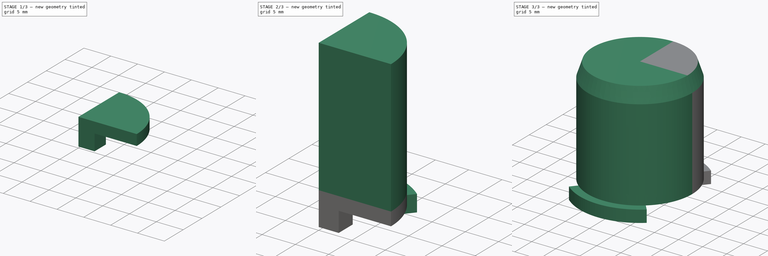
[diagram: build sequence overview — one tinted view per stage of 3, left to right]
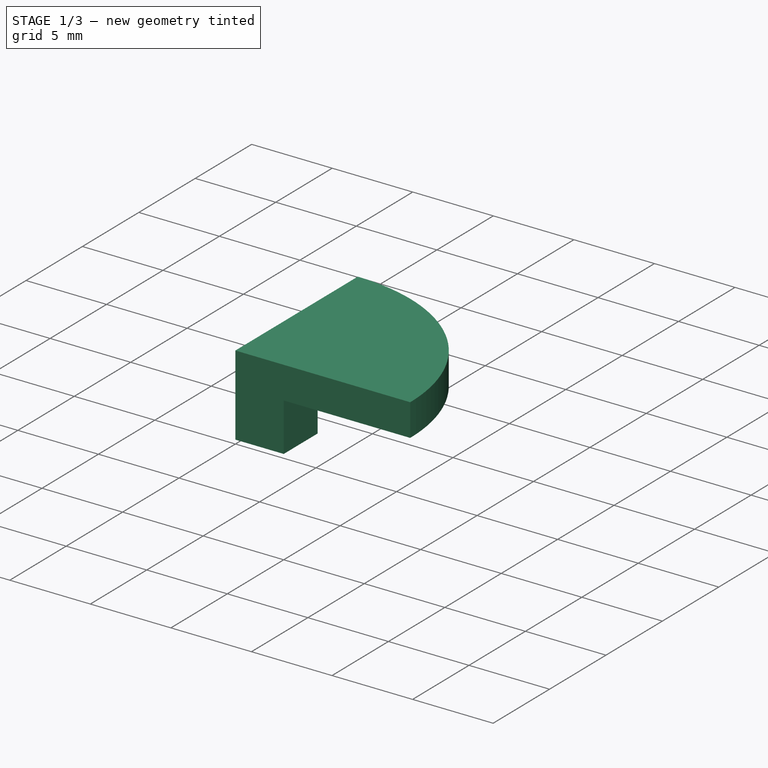
[diagram: stage 1 of 3 — iso view after this stage's code; geometry added in this stage tinted green]
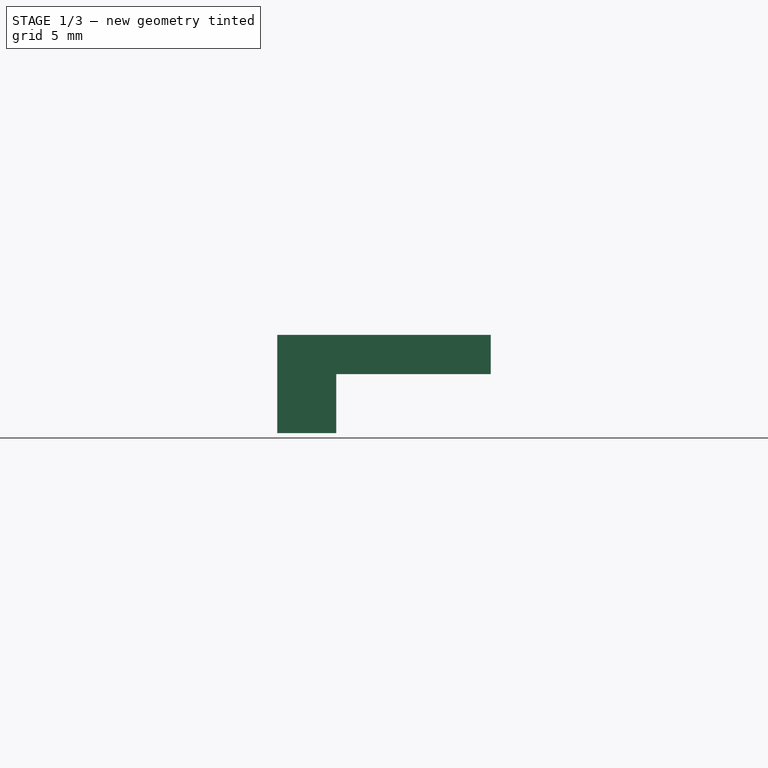
[diagram: stage 1 of 3 — front view after this stage's code; geometry added in this stage tinted green]
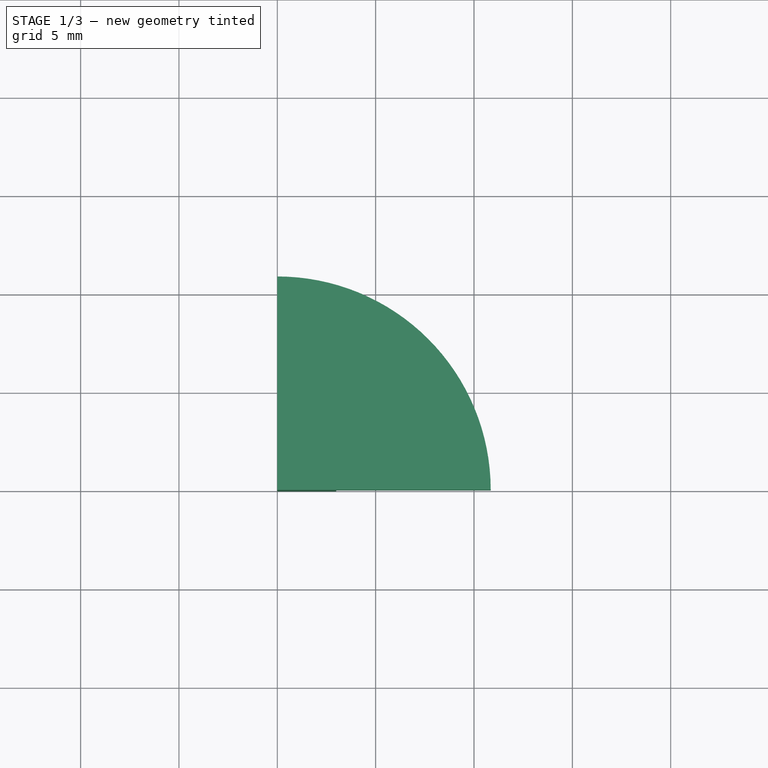
[diagram: stage 1 of 3 — top view after this stage's code; geometry added in this stage tinted green]
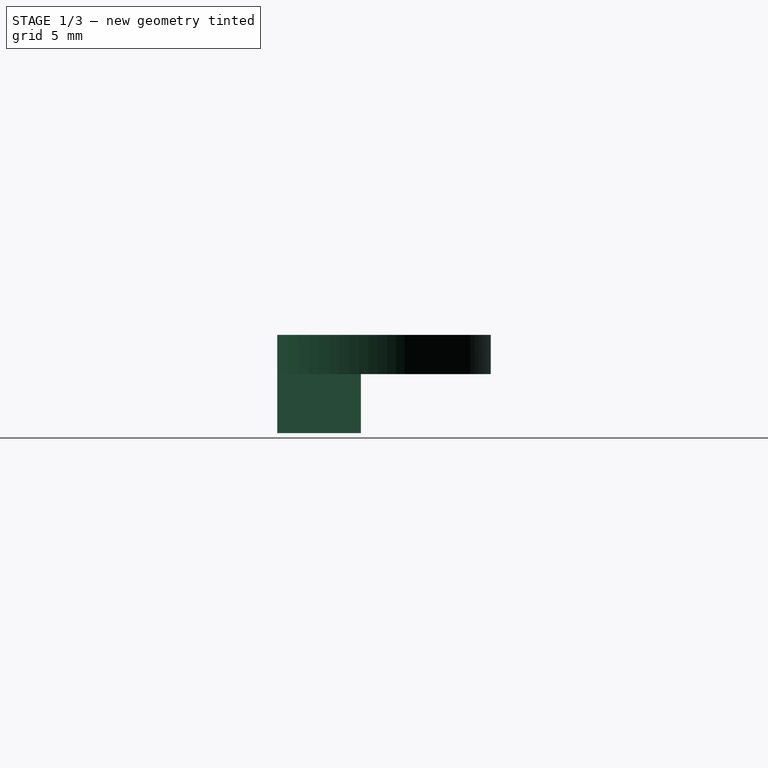
[diagram: stage 1 of 3 — right view after this stage's code; geometry added in this stage tinted green]
FCSTD DOCUMENT  (FreeCAD 0.19R24291 (Git))
Label: Ribbon
License: All rights reserved
LicenseURL: http://en.wikipedia.org/wiki/All_rights_reserved
objects: Sketcher::SketchObject×4, PartDesign::Pad×4, PartDesign::Mirrored×2, PartDesign::MultiTransform×1, PartDesign::Chamfer×1, PartDesign::Body×1
note: 18 computed .brp shape members not serialized (recipe doc carries the construction recipe); baked Part::Feature solids carry a one-line shape summary decoded from their .brp

FEATURE [Sketcher::SketchObject] Sketch
  FullyConstrained = true
  MapMode = 5
  Support = -> [XY_Plane]
  sketch-geometry (6):
    g0: LineSegment StartX=0 StartY=4.25 StartZ=0 EndX=1 EndY=4.25 EndZ=0
    g1: LineSegment StartX=1 StartY=4.25 StartZ=0 EndX=1 EndY=3 EndZ=0
    g2: LineSegment StartX=1 StartY=3 StartZ=0 EndX=3 EndY=3 EndZ=0
    g3: LineSegment StartX=3 StartY=3 StartZ=0 EndX=3 EndY=0 EndZ=0
    g4: LineSegment StartX=3 StartY=0 StartZ=0 EndX=0 EndY=0 EndZ=0
    g5: LineSegment StartX=0 StartY=0 StartZ=0 EndX=0 EndY=4.25 EndZ=0
  constraints (18):
    c: PointOnObject(g0,g-2)
    c: Horizontal(g0)
    c: Coincident(g0,g1)
    c: Vertical(g1)
    c: Coincident(g1,g2)
    c: Horizontal(g2)
    c: Coincident(g2,g3)
    c: PointOnObject(g3,g-1)
    c: Vertical(g3)
    c: Coincident(g3,g4)
    c: Coincident(g4,g-1)
    c: Coincident(g4,g5)
    c: Coincident(g5,g0)
    c: Distance(g3) = 3
    c: Distance(g4) = 3
    c: Distance(g1) = 1.25
    c: Distance(g0) = 1
    c: Distance(g5) = 4.25
FEATURE [PartDesign::Pad] Pad
  Direction = (1,1,1)
  Length = 3
  Length2 = 100
  Profile = -> Sketch
  Type = 0
FEATURE [Sketcher::SketchObject] Sketch001
  FullyConstrained = true
  MapMode = 5
  Placement = pos=(0,0,3) rot=(0,0,1;0rad)
  Support = -> [Pad]
  sketch-geometry (3):
    g0: ArcOfCircle CenterX=0 CenterY=0 CenterZ=0 NormalX=0 NormalY=0 NormalZ=1 AngleXU=0 Radius=10.85 StartAngle=0 EndAngle=1.5708
    g1: LineSegment StartX=7e-16 StartY=10.85 StartZ=0 EndX=0 EndY=0 EndZ=0
    g2: LineSegment StartX=0 StartY=0 StartZ=0 EndX=10.85 EndY=0 EndZ=0
  constraints (8):
    c: Coincident(g0,g-1)
    c: PointOnObject(g0,g-1)
    c: PointOnObject(g0,g-2)
    c: Coincident(g1,g0)
    c: Coincident(g1,g0)
    c: Coincident(g2,g0)
    c: Coincident(g2,g0)
    c: Diameter(g0) = 21.7
FEATURE [PartDesign::Pad] Pad001
  BaseFeature = -> Pad
  Direction = (1,1,1)
  Length = 2
  Length2 = 100
  Profile = -> Sketch001
  Type = 0
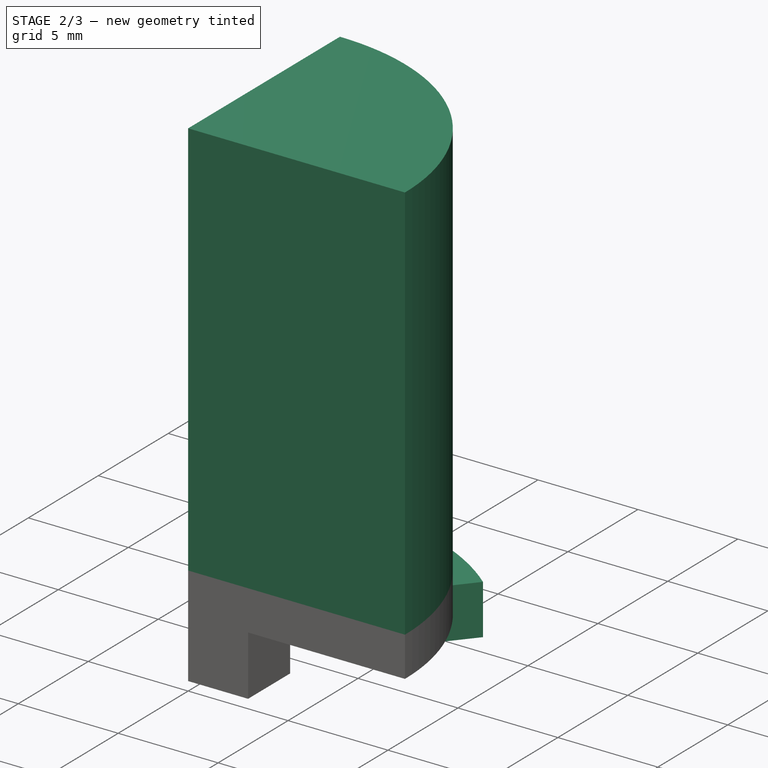
[diagram: stage 2 of 3 — iso view after this stage's code; geometry added in this stage tinted green]
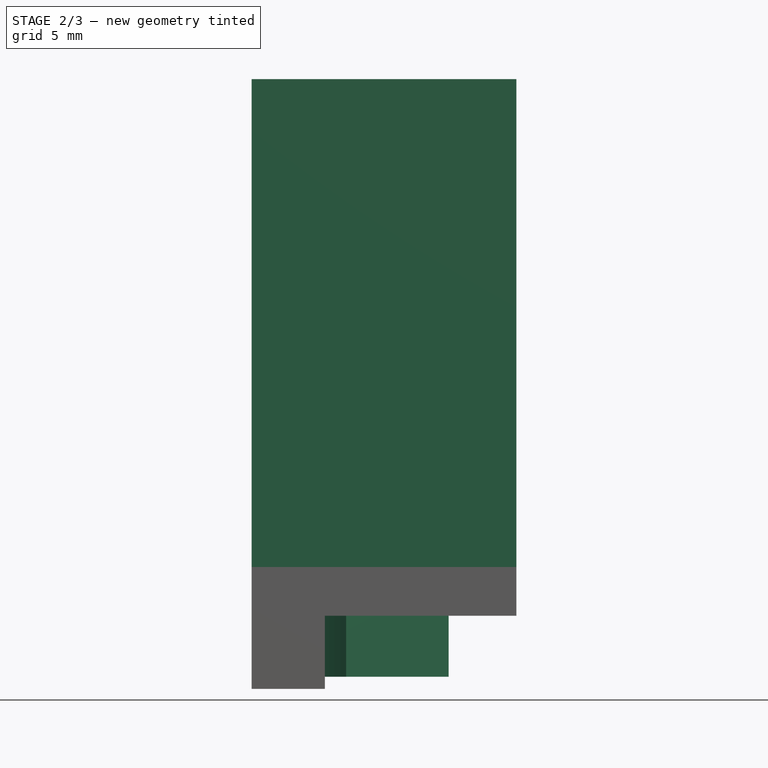
[diagram: stage 2 of 3 — front view after this stage's code; geometry added in this stage tinted green]
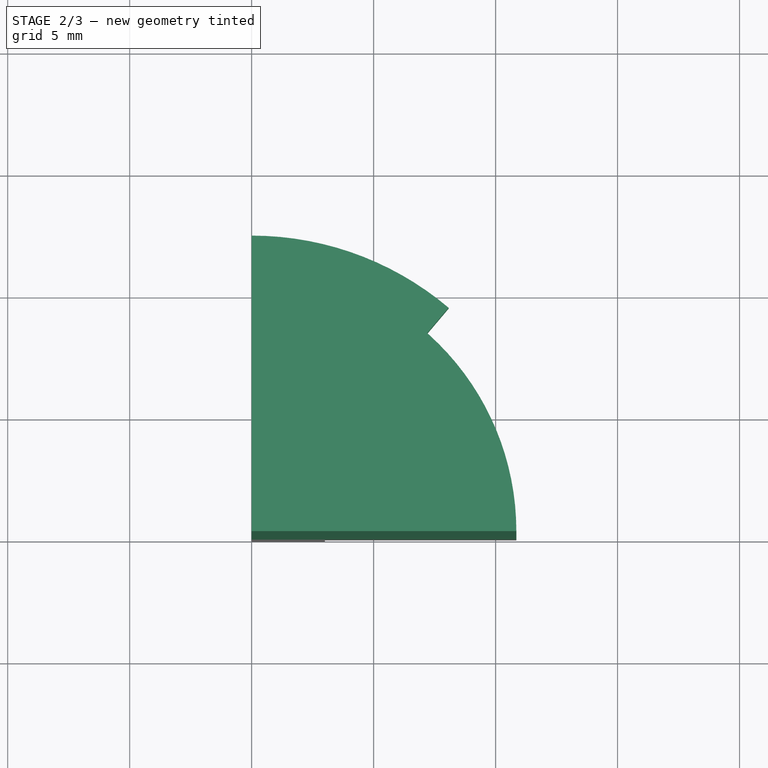
[diagram: stage 2 of 3 — top view after this stage's code; geometry added in this stage tinted green]
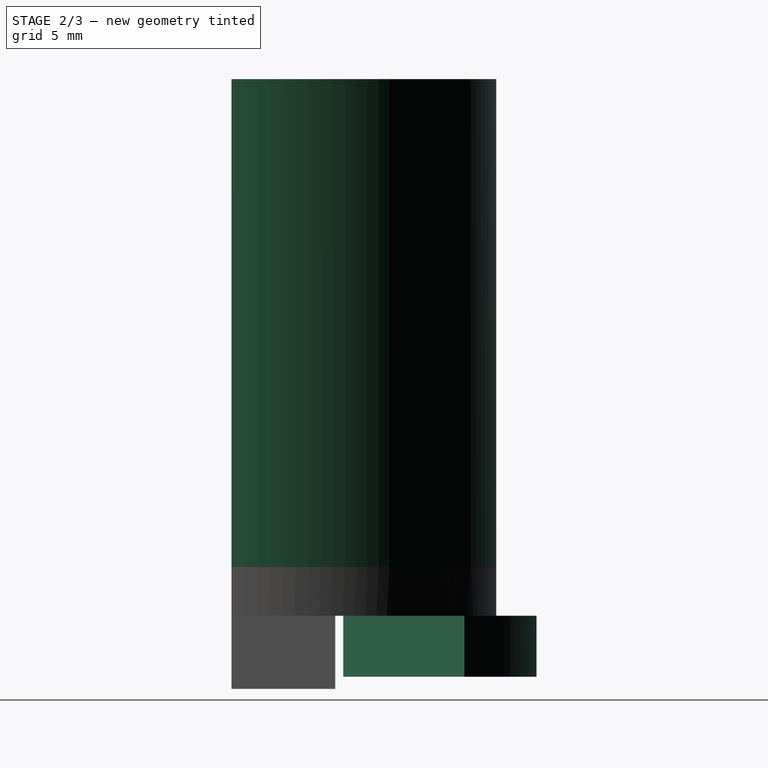
[diagram: stage 2 of 3 — right view after this stage's code; geometry added in this stage tinted green]
FEATURE [Sketcher::SketchObject] Sketch002
  FullyConstrained = true
  MapMode = 5
  Placement = pos=(0,0,5) rot=(0,0,1;0rad)
  Support = -> [Pad001]
  sketch-geometry (3):
    g0: ArcOfCircle CenterX=0 CenterY=0 CenterZ=0 NormalX=0 NormalY=0 NormalZ=1 AngleXU=0 Radius=10.85 StartAngle=0 EndAngle=1.5708
    g1: LineSegment StartX=0 StartY=0 StartZ=0 EndX=10.85 EndY=0 EndZ=0
    g2: LineSegment StartX=0 StartY=0 StartZ=0 EndX=7e-16 EndY=10.85 EndZ=0
  constraints (8):
    c: Coincident(g0,g-1)
    c: PointOnObject(g0,g-1)
    c: PointOnObject(g0,g-2)
    c: Coincident(g1,g0)
    c: Coincident(g1,g0)
    c: Coincident(g2,g0)
    c: Coincident(g2,g0)
    c: Diameter(g0) = 21.7
FEATURE [PartDesign::Pad] Pad002
  BaseFeature = -> Pad001
  Direction = (1,1,1)
  Length = 20
  Length2 = 100
  Profile = -> Sketch002
  Type = 0
FEATURE [Sketcher::SketchObject] Sketch003
  ExternalGeometry = -> [Pad002]
  FullyConstrained = true
  MapMode = 5
  Placement = pos=(0,0,3) rot=(1,0,0;3.14159rad)
  Support = -> [Pad002]
  sketch-geometry (10):
    g0: ArcOfCircle CenterX=0 CenterY=0 CenterZ=0 NormalX=0 NormalY=0 NormalZ=1 AngleXU=0 Radius=6 StartAngle=4.92226 EndAngle=5.41443
    g1: ArcOfCircle CenterX=0 CenterY=0 CenterZ=0 NormalX=0 NormalY=0 NormalZ=1 AngleXU=0 Radius=12.5 StartAngle=4.71239 EndAngle=5.41443
    g2: LineSegment StartX=3.87466 StartY=-4.58116 StartZ=0 EndX=8.07221 EndY=-9.54407 EndZ=0
    g3: LineSegment StartX=1.25 StartY=-8.86835 StartZ=0 EndX=1.25 EndY=-5.86835 EndZ=0
    g4: LineSegment StartX=4.24264 StartY=0 StartZ=0 EndX=4.24264 EndY=-4.24264 EndZ=0
    g5: LineSegment StartX=4.24264 StartY=-4.24264 StartZ=0 EndX=0 EndY=-4.24264 EndZ=0
    g6: LineSegment StartX=4.24264 StartY=-4.24264 StartZ=0 EndX=3.87466 EndY=-4.58116 EndZ=0
    g7: LineSegment StartX=1.25 StartY=-8.86835 StartZ=0 EndX=0 EndY=-8.86835 EndZ=0
    g8: LineSegment StartX=0 StartY=-8.86835 StartZ=0 EndX=-2.3e-15 EndY=-12.5 EndZ=0
    g9: LineSegment StartX=0 StartY=0 StartZ=0 EndX=4.24264 EndY=-4.24264 EndZ=0
  constraints (30):
    c: Coincident(g0,g-1)
    c: Coincident(g1,g0)
    c: Coincident(g2,g0)
    c: Coincident(g2,g1)
    c: Diameter(g0) = 12
    c: Diameter(g1) = 25
    c: Coincident(g3,g0)
    c: Vertical(g3)
    c: PointOnObject(g0,g2)
    c: PointOnObject(g4,g-1)
    c: Vertical(g4)
    c: Coincident(g5,g4)
    c: PointOnObject(g5,g-2)
    c: Horizontal(g5)
    c: Equal(g5,g4)
    c: Coincident(g6,g4)
    c: Coincident(g6,g0)
    c: Distance(g6) = 0.5
    c: PointOnObject(g4,g0)
    c: Distance(g3) = 3
    c: Distance(g3,g-2) = 1.25
    c: Coincident(g7,g3)
    c: PointOnObject(g7,g-3)
    c: Horizontal(g7)
    c: Coincident(g8,g7)
    c: PointOnObject(g8,g-2)
    c: Coincident(g1,g8)
    c: Coincident(g9,g0)
    c: Coincident(g9,g4)
    c: Angle(g2,g9) = 0.0833575
FEATURE [PartDesign::Pad] Pad003
  BaseFeature = -> Pad002
  Direction = (1,1,1)
  Length = 2.5
  Length2 = 100
  Profile = -> Sketch003
  Type = 0
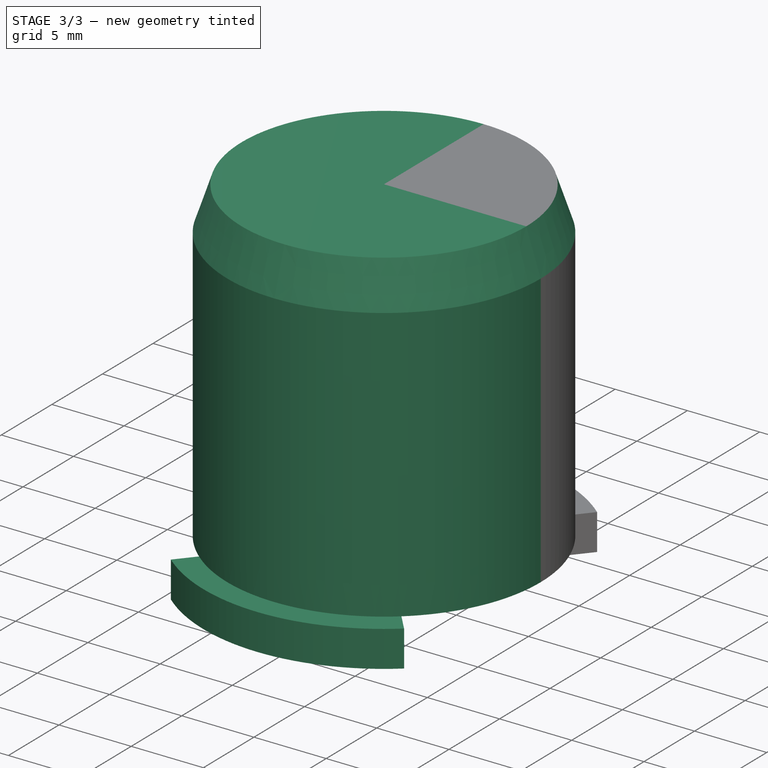
[diagram: stage 3 of 3 — iso view after this stage's code; geometry added in this stage tinted green]
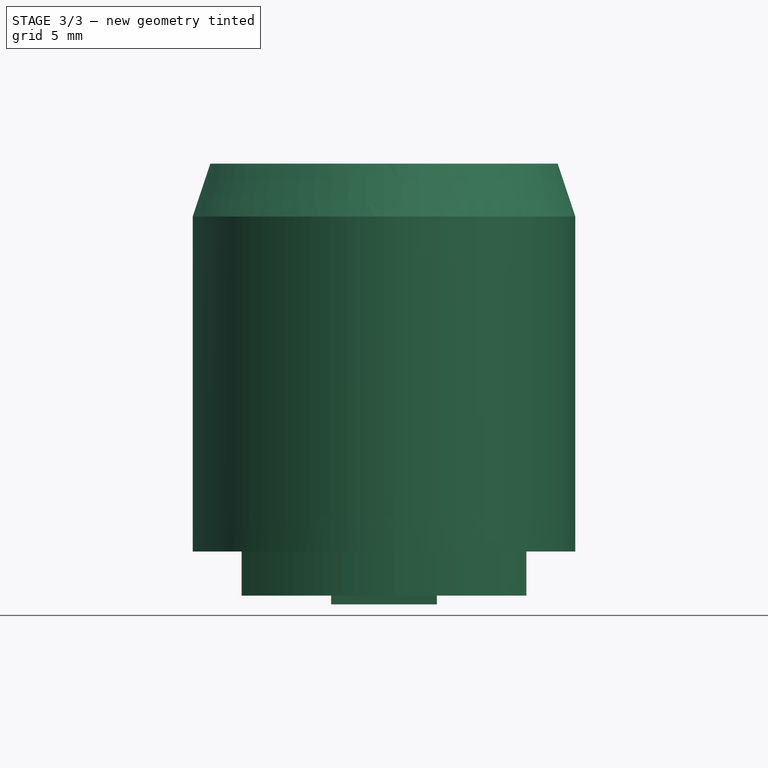
[diagram: stage 3 of 3 — front view after this stage's code; geometry added in this stage tinted green]
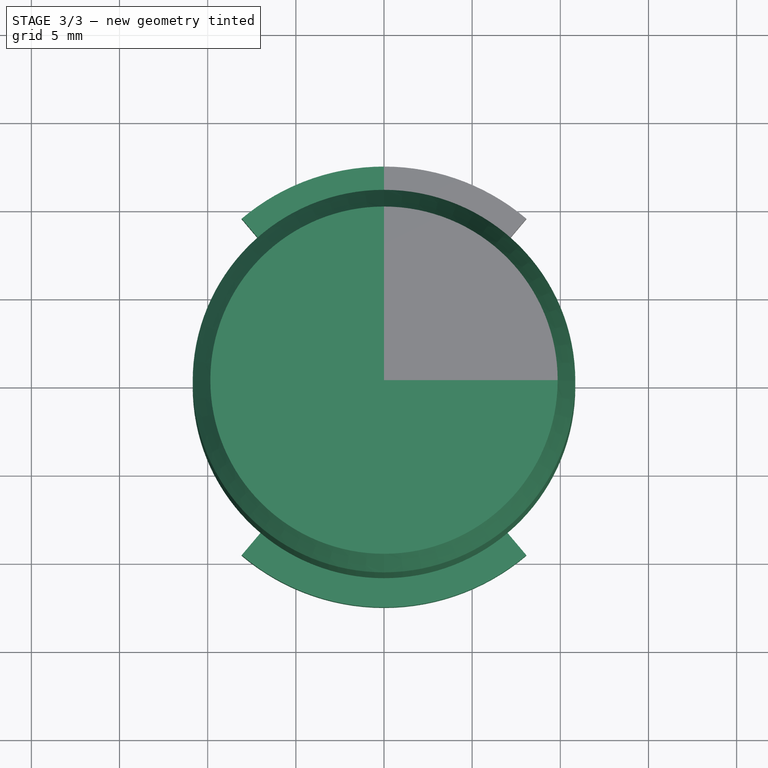
[diagram: stage 3 of 3 — top view after this stage's code; geometry added in this stage tinted green]
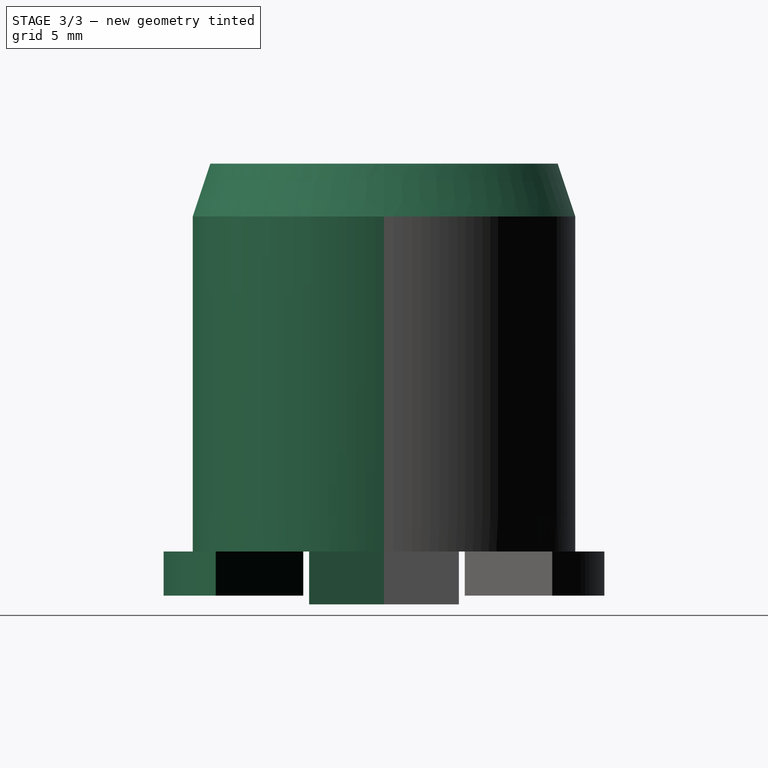
[diagram: stage 3 of 3 — right view after this stage's code; geometry added in this stage tinted green]
FEATURE [PartDesign::Mirrored] Mirrored
  MirrorPlane = -> Sketch [V_Axis]
FEATURE [PartDesign::Mirrored] Mirrored001
  MirrorPlane = -> Sketch [H_Axis]
FEATURE [PartDesign::MultiTransform] MultiTransform
  BaseFeature = -> Pad003
  Originals = -> [Pad,Pad001,Pad002,Pad003]
  Transformations = -> [Mirrored,Mirrored001]
FEATURE [PartDesign::Chamfer] Chamfer
  Angle = 45
  Base = -> MultiTransform [Edge149]
  BaseFeature = -> MultiTransform
  ChamferType = 1
  FlipDirection = false
  Size = 3
  Size2 = 1
  SupportTransform = false
FEATURE [PartDesign::Body] Body
  Group = -> [Sketch,Pad,Sketch001,Pad001,Sketch002,Pad002,Sketch003,Pad003,MultiTransform,Mirrored,Mirrored001,Chamfer]
  Origin = -> Origin
  Tip = -> Chamfer
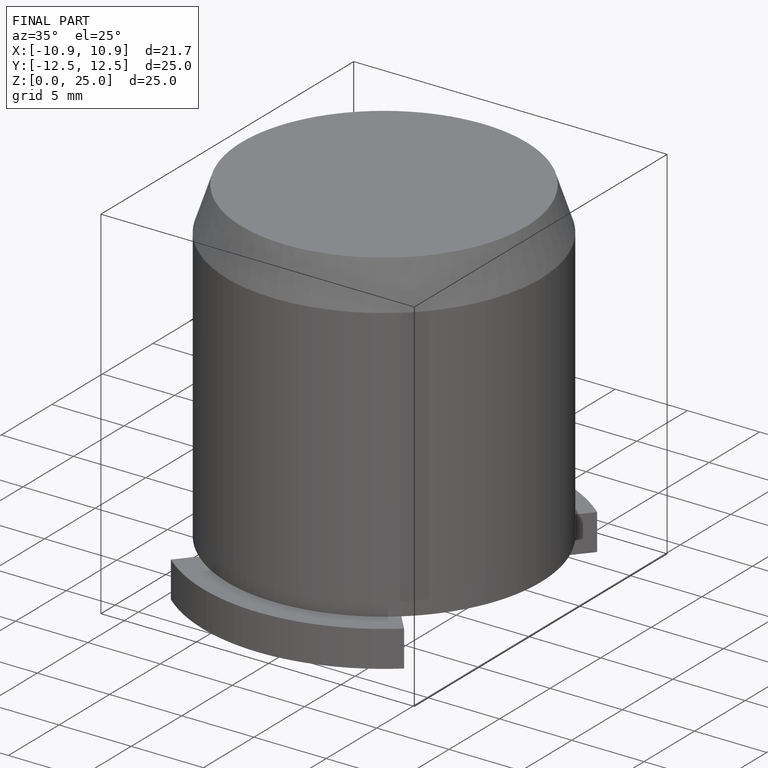
[diagram: finished part — iso view with bounding-box wireframe]
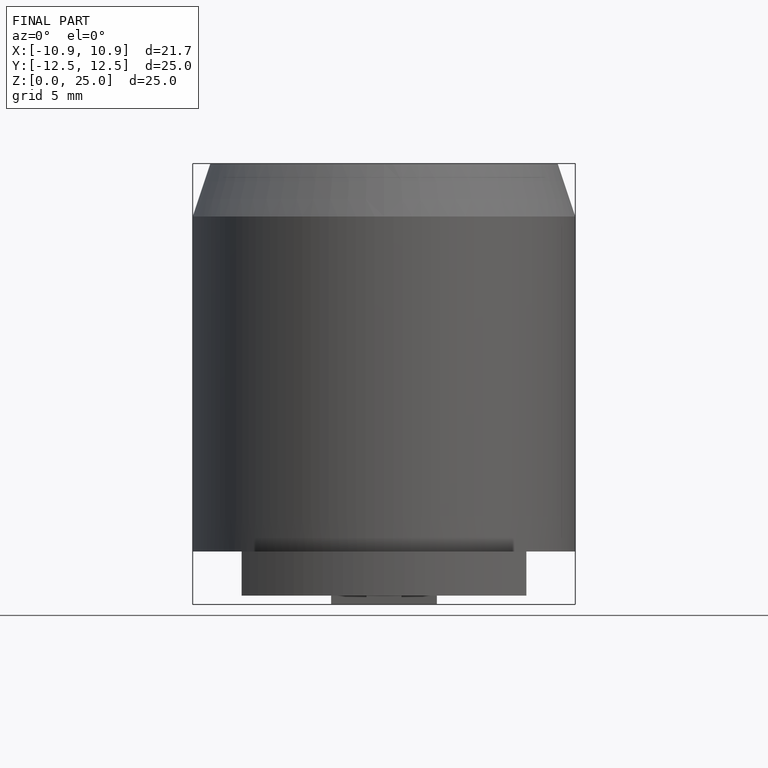
[diagram: finished part — front view with bounding-box wireframe]
